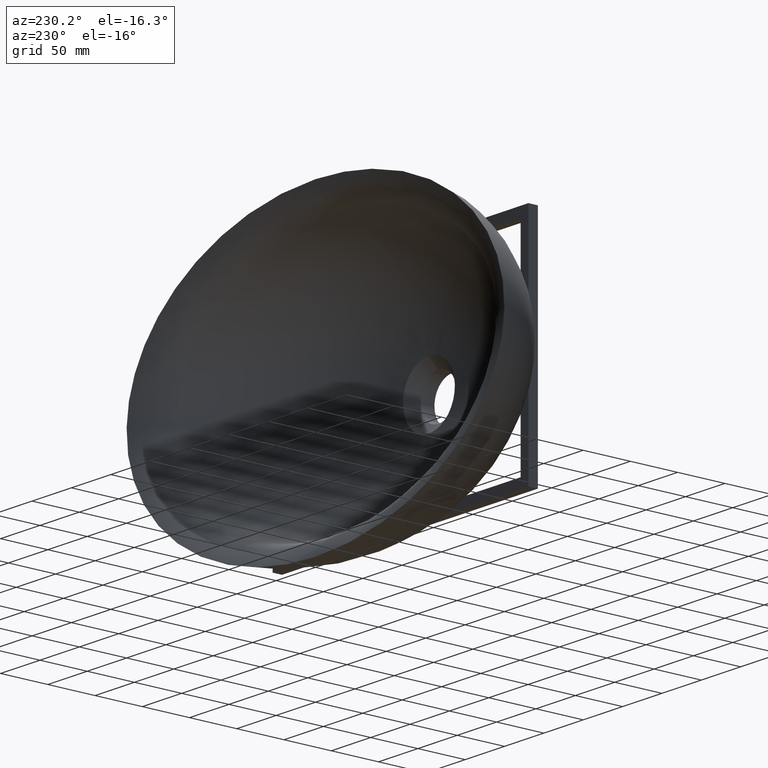
[diagram: clean part render]
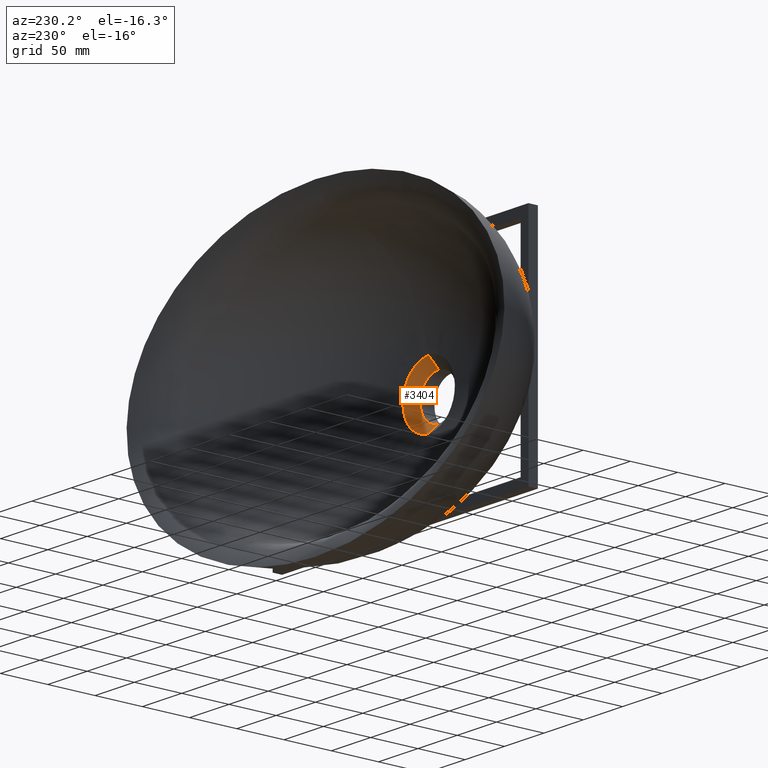
[diagram: same view with one face highlighted and labeled with its STEP entity id]
A machine part, auxiliary view. The second image highlights one B-rep face of the part: STEP entity #3404.
In plain terms, the highlighted face is a freeform B-spline surface patch.
Its self-contained STEP definition (entity closure, byte-faithful):
#39 = CARTESIAN_POINT ( 'NONE',  ( -16.87630028773804400, -120.0000000000000300, 28.79005539188280600 ) ) ;
#56 = CARTESIAN_POINT ( 'NONE',  ( 23.61951603177941200, -120.0000000000000000, -23.61951603177940500 ) ) ;
#72 = CARTESIAN_POINT ( 'NONE',  ( -3.469446951953614200E-015, -123.3333333333333600, 29.66666666666667100 ) ) ;
#85 = CARTESIAN_POINT ( 'NONE',  ( -15.17162349099682400, -123.3333333333333400, -25.88196898866231900 ) ) ;
#104 = CARTESIAN_POINT ( 'NONE',  ( 8.375961924112141700, -123.3333333333333300, 28.71893404163449800 ) ) ;
#125 = CARTESIAN_POINT ( 'NONE',  ( -25.67195930114970200, -126.6666666666666400, 7.003978029120498900 ) ) ;
#143 = CARTESIAN_POINT ( 'NONE',  ( 26.66402034942513700, -126.6666666666667000, -8.529057090219335200E-015 ) ) ;
#158 = CARTESIAN_POINT ( 'NONE',  ( -2.750466703463506400, -130.0000000000000300, 22.89145991336859300 ) ) ;
#175 = CARTESIAN_POINT ( 'NONE',  ( 6.117398531763483600, -130.0000000000000000, -22.42234419973835500 ) ) ;
#189 = CARTESIAN_POINT ( 'NONE',  ( 0.3058699265881701900, -130.0000000000000000, 23.00000000000000700 ) ) ;
#219 = CARTESIAN_POINT ( 'NONE',  ( 2.750466703463495800, -130.0000000000000000, 22.89145991336859600 ) ) ;
#259 = CARTESIAN_POINT ( 'NONE',  ( 28.79005539188281300, -120.0000000000000700, 16.87630028773805100 ) ) ;
#367 = FACE_OUTER_BOUND ( 'NONE', #2470, .T. ) ;
#409 = CARTESIAN_POINT ( 'NONE',  ( -28.79005539188280600, -120.0000000000000400, 16.87630028773805100 ) ) ;
#419 = CARTESIAN_POINT ( 'NONE',  ( -6.211062708398473300E-011, -123.3333333333333600, -29.66666666666666100 ) ) ;
#422 = CARTESIAN_POINT ( 'NONE',  ( 32.17118950397243500, -120.0000000000000300, -8.777137023834559000 ) ) ;
#439 = CARTESIAN_POINT ( 'NONE',  ( -0.9205650447557187600, -123.3333333333333600, 29.65549028270508100 ) ) ;
#454 = CARTESIAN_POINT ( 'NONE',  ( 1.062518129035794300E-014, -123.3333333333333400, -30.03921279871946500 ) ) ;
#472 = CARTESIAN_POINT ( 'NONE',  ( 0.9205650447557050000, -123.3333333333333600, 29.65549028270508500 ) ) ;
#491 = CARTESIAN_POINT ( 'NONE',  ( -25.67195930114970500, -126.6666666666666400, -7.003978029120506900 ) ) ;
#511 = CARTESIAN_POINT ( 'NONE',  ( 22.97388258544183900, -126.6666666666667000, 13.46694669425561100 ) ) ;
#527 = CARTESIAN_POINT ( 'NONE',  ( -11.76226989751439300, -129.9999999999999700, 20.06579618222134400 ) ) ;
#544 = CARTESIAN_POINT ( 'NONE',  ( 16.46208693124019400, -130.0000000000000000, -16.46208693124019000 ) ) ;
#578 = CARTESIAN_POINT ( 'NONE',  ( 6.117398531719067600, -130.0000000000000000, -22.42234419975690000 ) ) ;
#593 = CARTESIAN_POINT ( 'NONE',  ( 0.3058699265881701900, -130.0000000000000000, 23.00000000000000700 ) ) ;
#629 = CARTESIAN_POINT ( 'NONE',  ( 16.87630028773804700, -120.0000000000000300, 28.79005539188281300 ) ) ;
#779 = CARTESIAN_POINT ( 'NONE',  ( -33.41440524801378600, -120.0000000000000300, -6.071532165918824800E-015 ) ) ;
#793 = CARTESIAN_POINT ( 'NONE',  ( 32.17118950397242800, -120.0000000000000300, 8.777137023834557200 ) ) ;
#811 = CARTESIAN_POINT ( 'NONE',  ( -8.375961924112150600, -123.3333333333333100, 28.71893404163448000 ) ) ;
#824 = CARTESIAN_POINT ( 'NONE',  ( 15.17162349099683300, -123.3333333333333400, -25.88196898866231500 ) ) ;
#843 = CARTESIAN_POINT ( 'NONE',  ( -3.469446951953614200E-015, -123.3333333333333600, 29.66666666666667100 ) ) ;
#863 = CARTESIAN_POINT ( 'NONE',  ( -18.84789663141991400, -126.6666666666666400, -18.84789663141993200 ) ) ;
#877 = CARTESIAN_POINT ( 'NONE',  ( 13.46694669425560600, -126.6666666666666700, 22.97388258544183900 ) ) ;
#894 = CARTESIAN_POINT ( 'NONE',  ( -20.06579618222134400, -129.9999999999999700, 11.76226989751440000 ) ) ;
#907 = ORIENTED_EDGE ( 'NONE', *, *, #3506, .T. ) ;
#911 = CARTESIAN_POINT ( 'NONE',  ( 22.42234419973835500, -130.0000000000000000, -6.117398531763478300 ) ) ;
#943 = CARTESIAN_POINT ( 'NONE',  ( 16.46208693124019400, -130.0000000000000000, -16.46208693124019000 ) ) ;
#951 = EDGE_CURVE ( 'NONE', #1932, #1130, #1482, .T. ) ;
#991 = CARTESIAN_POINT ( 'NONE',  ( 3.946321791925883300, -120.0000000000000400, 32.84426857135494500 ) ) ;
#1130 = VERTEX_POINT ( 'NONE', #4221 ) ;
#1131 = CARTESIAN_POINT ( 'NONE',  ( -28.79005539188280600, -120.0000000000000300, -16.87630028773804700 ) ) ;
#1147 = CARTESIAN_POINT ( 'NONE',  ( 23.61951603177940500, -120.0000000000000600, 23.61951603177941200 ) ) ;
#1153 = CARTESIAN_POINT ( 'NONE',  ( -6.908711260444515000E-011, -120.0000000000000000, -33.00000000000001400 ) ) ;
#1160 = CARTESIAN_POINT ( 'NONE',  ( -21.23370633159965900, -123.3333333333333100, 21.23370633159966700 ) ) ;
#1173 = CARTESIAN_POINT ( 'NONE',  ( 25.88196898866232600, -123.3333333333333700, -15.17162349099682200 ) ) ;
#1194 = CARTESIAN_POINT ( 'NONE',  ( -0.3501989014560349400, -126.6666666666666400, 26.33333333333332500 ) ) ;
#1212 = CARTESIAN_POINT ( 'NONE',  ( -7.003978029120498100, -126.6666666666666700, -25.67195930114972000 ) ) ;
#1228 = CARTESIAN_POINT ( 'NONE',  ( 3.149085066284290400, -126.6666666666666700, 26.20906279936402700 ) ) ;
#1244 = CARTESIAN_POINT ( 'NONE',  ( -23.28882790013081900, -130.0000000000000000, -3.686287386450715100E-015 ) ) ;
#1262 = CARTESIAN_POINT ( 'NONE',  ( 22.42234419973836200, -130.0000000000000000, 6.117398531763477400 ) ) ;
#1295 = CARTESIAN_POINT ( 'NONE',  ( 22.42234419973835500, -130.0000000000000000, -6.117398531763478300 ) ) ;
#1332 = CARTESIAN_POINT ( 'NONE',  ( 8.777137023770833900, -120.0000000000000000, -32.17118950399903800 ) ) ;
#1346 = CARTESIAN_POINT ( 'NONE',  ( 0.4388568511917208000, -120.0000000000000300, 33.00000000000000000 ) ) ;
#1418 = VERTEX_POINT ( 'NONE', #2296 ) ;
#1482 = B_SPLINE_CURVE_WITH_KNOTS ( 'NONE', 3,
 ( #3395, #419, #2976, #3136 ),
 .UNSPECIFIED., .F., .F.,
 ( 4, 4 ),
 ( 0.0000000000000000000, 1.000000000000000000 ),
 .UNSPECIFIED. ) ;
#1502 = CARTESIAN_POINT ( 'NONE',  ( -16.87630028773803700, -120.0000000000000000, -28.79005539188281300 ) ) ;
#1518 = CARTESIAN_POINT ( 'NONE',  ( 9.317081241428114800, -120.0000000000000000, 31.94578056316645800 ) ) ;
#1531 = EDGE_CURVE ( 'NONE', #2490, #1418, #2836, .T. ) ;
#1535 = CARTESIAN_POINT ( 'NONE',  ( -28.92157440256107000, -123.3333333333333300, 7.890557526477522300 ) ) ;
#1550 = CARTESIAN_POINT ( 'NONE',  ( 30.03921279871947200, -123.3333333333333600, -2.963485938127061900E-015 ) ) ;
#1569 = CARTESIAN_POINT ( 'NONE',  ( -3.149085066284305500, -126.6666666666667000, 26.20906279936402700 ) ) ;
#1587 = CARTESIAN_POINT ( 'NONE',  ( 7.003978029120509600, -126.6666666666666700, -25.67195930114972000 ) ) ;
#1603 = CARTESIAN_POINT ( 'NONE',  ( 0.3501989014560192300, -126.6666666666666400, 26.33333333333332500 ) ) ;
#1618 = CARTESIAN_POINT ( 'NONE',  ( -20.06579618222134400, -130.0000000000000000, -11.76226989751440200 ) ) ;
#1635 = CARTESIAN_POINT ( 'NONE',  ( 16.46208693124019700, -130.0000000000000000, 16.46208693124019700 ) ) ;
#1668 = CARTESIAN_POINT ( 'NONE',  ( 22.42234419973836200, -130.0000000000000000, 6.117398531763477400 ) ) ;
#1708 = CARTESIAN_POINT ( 'NONE',  ( 23.61951603177941200, -120.0000000000000000, -23.61951603177940500 ) ) ;
#1717 = B_SPLINE_CURVE_WITH_KNOTS ( 'NONE', 3,
 ( #3116, #3479, #1332, #3821, #1708, #4175, #2069, #4526, #2422, #259, #2766, #629, #3126, #991, #3489, #1346, #3830 ),
 .UNSPECIFIED., .F., .F.,
 ( 4, 1, 1, 1, 1, 1, 1, 1, 1, 1, 1, 1, 1, 1, 4 ),
 ( 0.5000000000000004400, 0.5416666666657651300, 0.5833333333325136900, 0.6249999999992623700, 0.6666666666660110400, 0.7083333333327595000, 0.7499999999995081700, 0.7916666666662568500, 0.8333333333330055200, 0.8749999999997540900, 0.9166666666665026500, 0.9583333333332514400, 0.9916666666666502600, 0.9937499999999877000, 1.000000000000000000 ),
 .UNSPECIFIED. ) ;
#1823 = CARTESIAN_POINT ( 'NONE',  ( -0.4388568511917394500, -120.0000000000000400, 33.00000000000000000 ) ) ;
#1858 = CARTESIAN_POINT ( 'NONE',  ( -5.448115916739659800E-015, -120.0000000000000300, 33.00000000000000000 ) ) ;
#1875 = CARTESIAN_POINT ( 'NONE',  ( 1.387778780781445700E-014, -120.0000000000000000, -33.41440524801380000 ) ) ;
#1892 = CARTESIAN_POINT ( 'NONE',  ( 1.023999319447356000, -120.0000000000000300, 32.98756784255958500 ) ) ;
#1906 = CARTESIAN_POINT ( 'NONE',  ( -28.92157440256107700, -123.3333333333333300, -7.890557526477534700 ) ) ;
#1919 = CARTESIAN_POINT ( 'NONE',  ( 25.88196898866232200, -123.3333333333334000, 15.17162349099683800 ) ) ;
#1932 = VERTEX_POINT ( 'NONE', #1153 ) ;
#1939 = CARTESIAN_POINT ( 'NONE',  ( -13.46694669425560800, -126.6666666666666400, 22.97388258544182800 ) ) ;
#1955 = CARTESIAN_POINT ( 'NONE',  ( 18.84789663141992800, -126.6666666666666400, -18.84789663141993200 ) ) ;
#1971 = CARTESIAN_POINT ( 'NONE',  ( -2.656295322589485900E-015, -130.0000000000000000, 23.00000000000000700 ) ) ;
#1985 = CARTESIAN_POINT ( 'NONE',  ( -11.76226989751439000, -130.0000000000000000, -20.06579618222134400 ) ) ;
#2000 = CARTESIAN_POINT ( 'NONE',  ( 6.493723289480201700, -130.0000000000000000, 22.26524099857056900 ) ) ;
#2029 = CARTESIAN_POINT ( 'NONE',  ( 16.46208693124019700, -130.0000000000000000, 16.46208693124019700 ) ) ;
#2069 = CARTESIAN_POINT ( 'NONE',  ( 32.17118950397243500, -120.0000000000000300, -8.777137023834559000 ) ) ;
#2150 = ORIENTED_EDGE ( 'NONE', *, *, #3748, .F. ) ;
#2214 = CARTESIAN_POINT ( 'NONE',  ( -9.317081241428123700, -120.0000000000000000, 31.94578056316644400 ) ) ;
#2229 = CARTESIAN_POINT ( 'NONE',  ( 16.87630028773804700, -119.9999999999999900, -28.79005539188280900 ) ) ;
#2243 = CARTESIAN_POINT ( 'NONE',  ( -5.448115916739659800E-015, -120.0000000000000300, 33.00000000000000000 ) ) ;
#2260 = CARTESIAN_POINT ( 'NONE',  ( -21.23370633159966700, -123.3333333333333400, -21.23370633159967000 ) ) ;
#2269 = ORIENTED_EDGE ( 'NONE', *, *, #951, .T. ) ;
#2278 = CARTESIAN_POINT ( 'NONE',  ( 15.17162349099682700, -123.3333333333333700, 25.88196898866232900 ) ) ;
#2295 = CARTESIAN_POINT ( 'NONE',  ( -22.97388258544183200, -126.6666666666666400, 13.46694669425561700 ) ) ;
#2296 = CARTESIAN_POINT ( 'NONE',  ( -2.656295322589485900E-015, -130.0000000000000000, 23.00000000000000700 ) ) ;
#2309 = CARTESIAN_POINT ( 'NONE',  ( 25.67195930114970500, -126.6666666666666700, -7.003978029120506000 ) ) ;
#2325 = CARTESIAN_POINT ( 'NONE',  ( -0.7136964953724115300, -130.0000000000000000, 22.99133516299608000 ) ) ;
#2341 = CARTESIAN_POINT ( 'NONE',  ( 1.149254302834634700E-014, -130.0000000000000000, -23.28882790013082300 ) ) ;
#2358 = CARTESIAN_POINT ( 'NONE',  ( 0.7136964953724005400, -130.0000000000000000, 22.99133516299608400 ) ) ;
#2372 = CARTESIAN_POINT ( 'NONE',  ( 2.039132843873056700, -130.0000000000000000, -23.00000000000681800 ) ) ;
#2383 = CARTESIAN_POINT ( 'NONE',  ( 6.493723289480201700, -130.0000000000000000, 22.26524099857056900 ) ) ;
#2422 = CARTESIAN_POINT ( 'NONE',  ( 32.17118950397242800, -120.0000000000000300, 8.777137023834557200 ) ) ;
#2423 = CARTESIAN_POINT ( 'NONE',  ( -5.448115916739659800E-015, -120.0000000000000300, 33.00000000000000000 ) ) ;
#2470 = EDGE_LOOP ( 'NONE', ( #2150, #2269, #907, #3259 ) ) ;
#2490 = VERTEX_POINT ( 'NONE', #2423 ) ;
#2574 = CARTESIAN_POINT ( 'NONE',  ( -23.61951603177939800, -120.0000000000000300, 23.61951603177940500 ) ) ;
#2588 = CARTESIAN_POINT ( 'NONE',  ( 28.79005539188281700, -120.0000000000000300, -16.87630028773804700 ) ) ;
#2605 = CARTESIAN_POINT ( 'NONE',  ( -0.3945278763238855800, -123.3333333333333600, 29.66666666666667100 ) ) ;
#2619 = CARTESIAN_POINT ( 'NONE',  ( -7.890557526477529400, -123.3333333333333400, -28.92157440256106300 ) ) ;
#2635 = CARTESIAN_POINT ( 'NONE',  ( 3.547703429105088200, -123.3333333333333700, 29.52666568535949700 ) ) ;
#2651 = CARTESIAN_POINT ( 'NONE',  ( -26.66402034942513300, -126.6666666666666400, -5.348730717595122300E-015 ) ) ;
#2665 = CARTESIAN_POINT ( 'NONE',  ( 25.67195930114970500, -126.6666666666666700, 7.003978029120502500 ) ) ;
#2681 = CARTESIAN_POINT ( 'NONE',  ( -6.493723289480208800, -130.0000000000000000, 22.26524099857055800 ) ) ;
#2694 = CARTESIAN_POINT ( 'NONE',  ( 11.76226989751439900, -130.0000000000000000, -20.06579618222134800 ) ) ;
#2710 = CARTESIAN_POINT ( 'NONE',  ( -2.656295322589485900E-015, -130.0000000000000000, 23.00000000000000700 ) ) ;
#2735 = CARTESIAN_POINT ( 'NONE',  ( 0.7136964953724005400, -130.0000000000000000, 22.99133516299608400 ) ) ;
#2766 = CARTESIAN_POINT ( 'NONE',  ( 23.61951603177940500, -120.0000000000000600, 23.61951603177941200 ) ) ;
#2777 = B_SPLINE_CURVE_WITH_KNOTS ( 'NONE', 3,
 ( #3426, #2372, #578, #3075, #943, #3442, #1295, #3783, #1668, #4131, #2029, #4487, #2383, #219, #2735, #593, #3090 ),
 .UNSPECIFIED., .F., .F.,
 ( 4, 1, 1, 1, 1, 1, 1, 1, 1, 1, 1, 1, 1, 1, 4 ),
 ( 0.5000000000000004400, 0.5416666666657651300, 0.5833333333325136900, 0.6249999999992623700, 0.6666666666660110400, 0.7083333333327595000, 0.7499999999995081700, 0.7916666666662568500, 0.8333333333330055200, 0.8749999999997540900, 0.9166666666665026500, 0.9583333333332514400, 0.9916666666666502600, 0.9937499999999877000, 1.000000000000000000 ),
 .UNSPECIFIED. ) ;
#2836 = B_SPLINE_CURVE_WITH_KNOTS ( 'NONE', 3,
 ( #4372, #4353, #4348, #4343 ),
 .UNSPECIFIED., .F., .F.,
 ( 4, 4 ),
 ( 0.0000000000000000000, 1.000000000000000000 ),
 .UNSPECIFIED. ) ;
#2915 = CARTESIAN_POINT ( 'NONE',  ( -32.17118950397242100, -120.0000000000000300, 8.777137023834550100 ) ) ;
#2929 = CARTESIAN_POINT ( 'NONE',  ( 33.41440524801380000, -120.0000000000000100, -1.040834085586084300E-014 ) ) ;
#2948 = CARTESIAN_POINT ( 'NONE',  ( -3.547703429105101100, -123.3333333333333900, 29.52666568535948200 ) ) ;
#2962 = CARTESIAN_POINT ( 'NONE',  ( 7.890557526477534700, -123.3333333333333400, -28.92157440256106300 ) ) ;
#2976 = CARTESIAN_POINT ( 'NONE',  ( -5.512720266962036300E-011, -126.6666666666666700, -26.33333333333334600 ) ) ;
#2980 = CARTESIAN_POINT ( 'NONE',  ( 0.3945278763238716000, -123.3333333333333600, 29.66666666666667100 ) ) ;
#2997 = CARTESIAN_POINT ( 'NONE',  ( -22.97388258544182800, -126.6666666666666400, -13.46694669425561800 ) ) ;
#3012 = CARTESIAN_POINT ( 'NONE',  ( 18.84789663141992500, -126.6666666666666700, 18.84789663141992800 ) ) ;
#3030 = CARTESIAN_POINT ( 'NONE',  ( -16.46208693124018700, -129.9999999999999700, 16.46208693124019000 ) ) ;
#3046 = CARTESIAN_POINT ( 'NONE',  ( 20.06579618222135200, -130.0000000000000000, -11.76226989751439300 ) ) ;
#3075 = CARTESIAN_POINT ( 'NONE',  ( 11.76226989751439900, -130.0000000000000000, -20.06579618222134800 ) ) ;
#3090 = CARTESIAN_POINT ( 'NONE',  ( -2.656295322589485900E-015, -130.0000000000000000, 23.00000000000000700 ) ) ;
#3116 = CARTESIAN_POINT ( 'NONE',  ( -6.908711260444515000E-011, -120.0000000000000000, -33.00000000000001400 ) ) ;
#3126 = CARTESIAN_POINT ( 'NONE',  ( 9.317081241428114800, -120.0000000000000000, 31.94578056316645800 ) ) ;
#3136 = CARTESIAN_POINT ( 'NONE',  ( -4.815006662785645400E-011, -130.0000000000000000, -23.00000000000000000 ) ) ;
#3259 = ORIENTED_EDGE ( 'NONE', *, *, #1531, .F. ) ;
#3278 = CARTESIAN_POINT ( 'NONE',  ( -32.17118950397242800, -120.0000000000000300, -8.777137023834559000 ) ) ;
#3293 = CARTESIAN_POINT ( 'NONE',  ( 28.79005539188281300, -120.0000000000000700, 16.87630028773805100 ) ) ;
#3312 = CARTESIAN_POINT ( 'NONE',  ( -15.17162349099682700, -123.3333333333333300, 25.88196898866231900 ) ) ;
#3323 = CARTESIAN_POINT ( 'NONE',  ( 21.23370633159967700, -123.3333333333333600, -21.23370633159966300 ) ) ;
#3340 = CARTESIAN_POINT ( 'NONE',  ( -4.743384504624081900E-015, -126.6666666666666400, 26.33333333333332500 ) ) ;
#3355 = CARTESIAN_POINT ( 'NONE',  ( -13.46694669425560100, -126.6666666666666700, -22.97388258544184200 ) ) ;
#3378 = CARTESIAN_POINT ( 'NONE',  ( 7.434842606796171300, -126.6666666666666400, 25.49208752010251900 ) ) ;
#3395 = CARTESIAN_POINT ( 'NONE',  ( -6.908711260444515000E-011, -120.0000000000000000, -33.00000000000001400 ) ) ;
#3396 = CARTESIAN_POINT ( 'NONE',  ( -22.42234419973835500, -130.0000000000000000, 6.117398531763476500 ) ) ;
#3404 = ADVANCED_FACE ( 'NONE', ( #367 ), #4165, .T. ) ;
#3412 = CARTESIAN_POINT ( 'NONE',  ( 23.28882790013081900, -130.0000000000000000, -5.421010862427522200E-015 ) ) ;
#3426 = CARTESIAN_POINT ( 'NONE',  ( -4.815006662785645400E-011, -130.0000000000000000, -23.00000000000000000 ) ) ;
#3442 = CARTESIAN_POINT ( 'NONE',  ( 20.06579618222135200, -130.0000000000000000, -11.76226989751439300 ) ) ;
#3479 = CARTESIAN_POINT ( 'NONE',  ( 2.925712341209166100, -120.0000000000000100, -33.00000000000979100 ) ) ;
#3489 = CARTESIAN_POINT ( 'NONE',  ( 1.023999319447356000, -120.0000000000000300, 32.98756784255958500 ) ) ;
#3506 = EDGE_CURVE ( 'NONE', #1130, #1418, #2777, .T. ) ;
#3633 = CARTESIAN_POINT ( 'NONE',  ( -23.61951603177939800, -120.0000000000000300, -23.61951603177940800 ) ) ;
#3649 = CARTESIAN_POINT ( 'NONE',  ( 16.87630028773804700, -120.0000000000000300, 28.79005539188281300 ) ) ;
#3660 = CARTESIAN_POINT ( 'NONE',  ( -25.88196898866231900, -123.3333333333333100, 15.17162349099683300 ) ) ;
#3674 = CARTESIAN_POINT ( 'NONE',  ( 28.92157440256107400, -123.3333333333333700, -7.890557526477524100 ) ) ;
#3692 = CARTESIAN_POINT ( 'NONE',  ( -0.8171307700640668700, -126.6666666666666700, 26.32341272285057000 ) ) ;
#3712 = CARTESIAN_POINT ( 'NONE',  ( 1.431146867680865900E-014, -126.6666666666666700, -26.66402034942515400 ) ) ;
#3726 = CARTESIAN_POINT ( 'NONE',  ( 0.8171307700640512200, -126.6666666666666700, 26.32341272285057300 ) ) ;
#3739 = CARTESIAN_POINT ( 'NONE',  ( -22.42234419973835500, -130.0000000000000000, -6.117398531763482700 ) ) ;
#3748 = EDGE_CURVE ( 'NONE', #1932, #2490, #1717, .T. ) ;
#3755 = CARTESIAN_POINT ( 'NONE',  ( 20.06579618222135900, -130.0000000000000300, 11.76226989751439500 ) ) ;
#3783 = CARTESIAN_POINT ( 'NONE',  ( 23.28882790013081900, -130.0000000000000000, -5.421010862427522200E-015 ) ) ;
#3821 = CARTESIAN_POINT ( 'NONE',  ( 16.87630028773804700, -119.9999999999999900, -28.79005539188280900 ) ) ;
#3830 = CARTESIAN_POINT ( 'NONE',  ( -5.448115916739659800E-015, -120.0000000000000300, 33.00000000000000000 ) ) ;
#3945 = CARTESIAN_POINT ( 'NONE',  ( -1.023999319447374200, -120.0000000000000600, 32.98756784255958500 ) ) ;
#3978 = CARTESIAN_POINT ( 'NONE',  ( -8.777137023834550100, -120.0000000000000000, -32.17118950397242800 ) ) ;
#3993 = CARTESIAN_POINT ( 'NONE',  ( 3.946321791925883300, -120.0000000000000400, 32.84426857135494500 ) ) ;
#4006 = CARTESIAN_POINT ( 'NONE',  ( -30.03921279871946800, -123.3333333333333300, -7.878535786727982100E-015 ) ) ;
#4023 = CARTESIAN_POINT ( 'NONE',  ( 28.92157440256106300, -123.3333333333333600, 7.890557526477534700 ) ) ;
#4042 = CARTESIAN_POINT ( 'NONE',  ( -7.434842606796181000, -126.6666666666666400, 25.49208752010251200 ) ) ;
#4055 = CARTESIAN_POINT ( 'NONE',  ( 13.46694669425561500, -126.6666666666666400, -22.97388258544184200 ) ) ;
#4070 = CARTESIAN_POINT ( 'NONE',  ( -4.743384504624081900E-015, -126.6666666666666400, 26.33333333333332500 ) ) ;
#4085 = CARTESIAN_POINT ( 'NONE',  ( -16.46208693124018700, -130.0000000000000000, -16.46208693124019000 ) ) ;
#4100 = CARTESIAN_POINT ( 'NONE',  ( 11.76226989751439500, -130.0000000000000000, 20.06579618222135900 ) ) ;
#4131 = CARTESIAN_POINT ( 'NONE',  ( 20.06579618222135900, -130.0000000000000300, 11.76226989751439500 ) ) ;
#4165 = B_SPLINE_SURFACE_WITH_KNOTS ( 'NONE', 3, 3, ( 
 ( #1858, #1823, #3945, #4318, #2214, #39, #2574, #409, #2915, #779, #3278, #1131, #3633, #1502, #3978, #1875, #4333, #2229, #56, #2588, #422, #2929, #793, #3293, #1147, #3649, #1518, #3993, #1892, #4350, #2243 ),
 ( #72, #2605, #439, #2948, #811, #3312, #1160, #3660, #1535, #4006, #1906, #4368, #2260, #85, #2619, #454, #2962, #824, #3323, #1173, #3674, #1550, #4023, #1919, #4380, #2278, #104, #2635, #472, #2980, #843 ),
 ( #3340, #1194, #3692, #1569, #4042, #1939, #4396, #2295, #125, #2651, #491, #2997, #863, #3355, #1212, #3712, #1587, #4055, #1955, #4415, #2309, #143, #2665, #511, #3012, #877, #3378, #1228, #3726, #1603, #4070 ),
 ( #1971, #4429, #2325, #158, #2681, #527, #3030, #894, #3396, #1244, #3739, #1618, #4085, #1985, #4444, #2341, #175, #2694, #544, #3046, #911, #3412, #1262, #3755, #1635, #4100, #2000, #4459, #2358, #189, #2710 ) ),
 .UNSPECIFIED., .F., .T., .F.,
 ( 4, 4 ),
 ( 4, 1, 1, 1, 1, 1, 1, 1, 1, 1, 1, 1, 1, 1, 1, 1, 1, 1, 1, 1, 1, 1, 1, 1, 1, 1, 1, 1, 4 ),
 ( 0.0000000000000000000, 1.000000000000000000 ),
 ( 0.0000000000000000000, 0.006250000000000088800, 0.008333333333333303700, 0.04166666666666663000, 0.08333333333333337000, 0.1249999999999998900, 0.1666666666666666300, 0.2083333333333333700, 0.2499999999999998300, 0.2916666666666666300, 0.3333333333333333700, 0.3750000000000001100, 0.4166666666666666300, 0.4583333333333333700, 0.5000000000009839900, 0.5416666666666667400, 0.5833333333333332600, 0.6250000000000000000, 0.6666666666666667400, 0.7083333333333332600, 0.7499999999999998900, 0.7916666666666666300, 0.8333333333333333700, 0.8750000000000000000, 0.9166666666666666300, 0.9583333333333333700, 0.9916666666666667000, 0.9937500000000000200, 1.000000000000000000 ),
 .UNSPECIFIED. ) ;
#4175 = CARTESIAN_POINT ( 'NONE',  ( 28.79005539188281700, -120.0000000000000300, -16.87630028773804700 ) ) ;
#4221 = CARTESIAN_POINT ( 'NONE',  ( -4.815006662785645400E-011, -130.0000000000000000, -23.00000000000000000 ) ) ;
#4318 = CARTESIAN_POINT ( 'NONE',  ( -3.946321791925900600, -120.0000000000001100, 32.84426857135493100 ) ) ;
#4333 = CARTESIAN_POINT ( 'NONE',  ( 8.777137023834562500, -120.0000000000000000, -32.17118950397243500 ) ) ;
#4343 = CARTESIAN_POINT ( 'NONE',  ( -2.656295322589485900E-015, -130.0000000000000000, 23.00000000000000700 ) ) ;
#4348 = CARTESIAN_POINT ( 'NONE',  ( -4.743384504624081900E-015, -126.6666666666666400, 26.33333333333332500 ) ) ;
#4350 = CARTESIAN_POINT ( 'NONE',  ( 0.4388568511917208000, -120.0000000000000300, 33.00000000000000000 ) ) ;
#4353 = CARTESIAN_POINT ( 'NONE',  ( -3.469446951953614200E-015, -123.3333333333333600, 29.66666666666667100 ) ) ;
#4368 = CARTESIAN_POINT ( 'NONE',  ( -25.88196898866232200, -123.3333333333333400, -15.17162349099683500 ) ) ;
#4372 = CARTESIAN_POINT ( 'NONE',  ( -5.448115916739659800E-015, -120.0000000000000300, 33.00000000000000000 ) ) ;
#4380 = CARTESIAN_POINT ( 'NONE',  ( 21.23370633159965900, -123.3333333333333700, 21.23370633159968100 ) ) ;
#4396 = CARTESIAN_POINT ( 'NONE',  ( -18.84789663141992100, -126.6666666666666400, 18.84789663141992100 ) ) ;
#4415 = CARTESIAN_POINT ( 'NONE',  ( 22.97388258544183500, -126.6666666666666700, -13.46694669425561300 ) ) ;
#4429 = CARTESIAN_POINT ( 'NONE',  ( -0.3058699265881809100, -130.0000000000000000, 23.00000000000000700 ) ) ;
#4444 = CARTESIAN_POINT ( 'NONE',  ( -6.117398531763475600, -130.0000000000000000, -22.42234419973835500 ) ) ;
#4459 = CARTESIAN_POINT ( 'NONE',  ( 2.750466703463495800, -130.0000000000000000, 22.89145991336859600 ) ) ;
#4487 = CARTESIAN_POINT ( 'NONE',  ( 11.76226989751439500, -130.0000000000000000, 20.06579618222135900 ) ) ;
#4526 = CARTESIAN_POINT ( 'NONE',  ( 33.41440524801380000, -120.0000000000000100, -1.040834085586094000E-014 ) ) ;